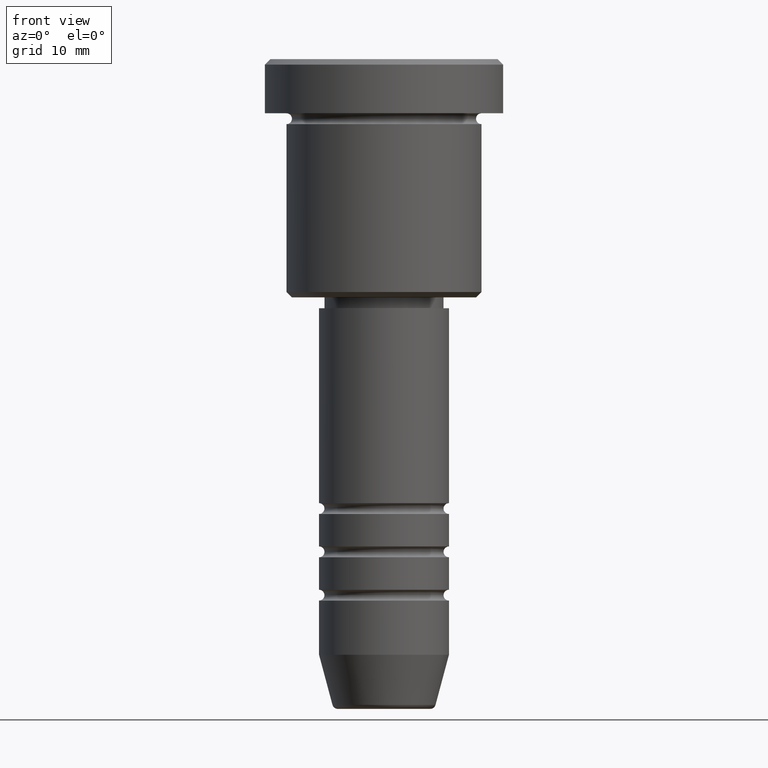
[diagram: clean part render]
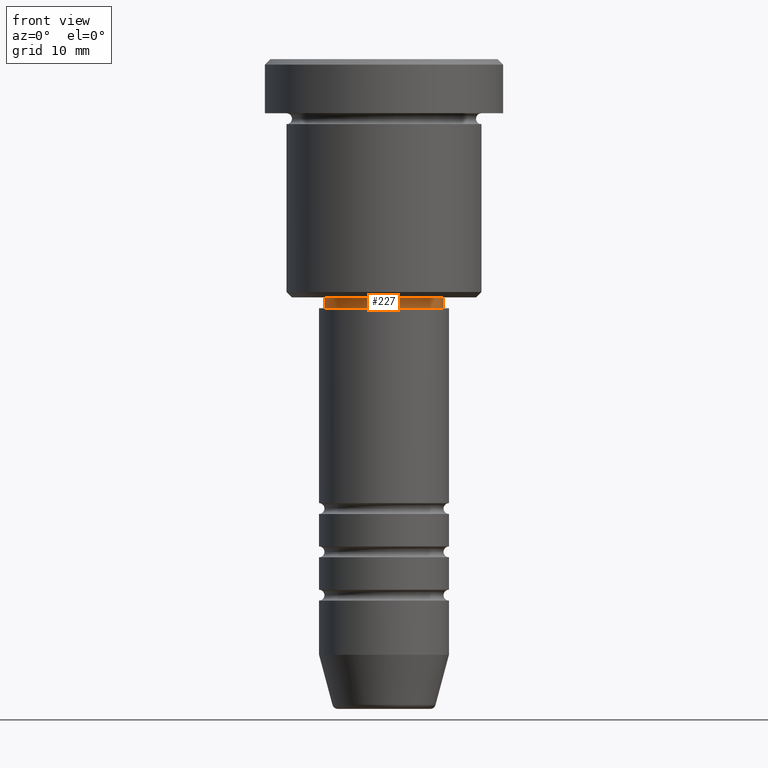
[diagram: same view with one face highlighted and labeled with its STEP entity id]
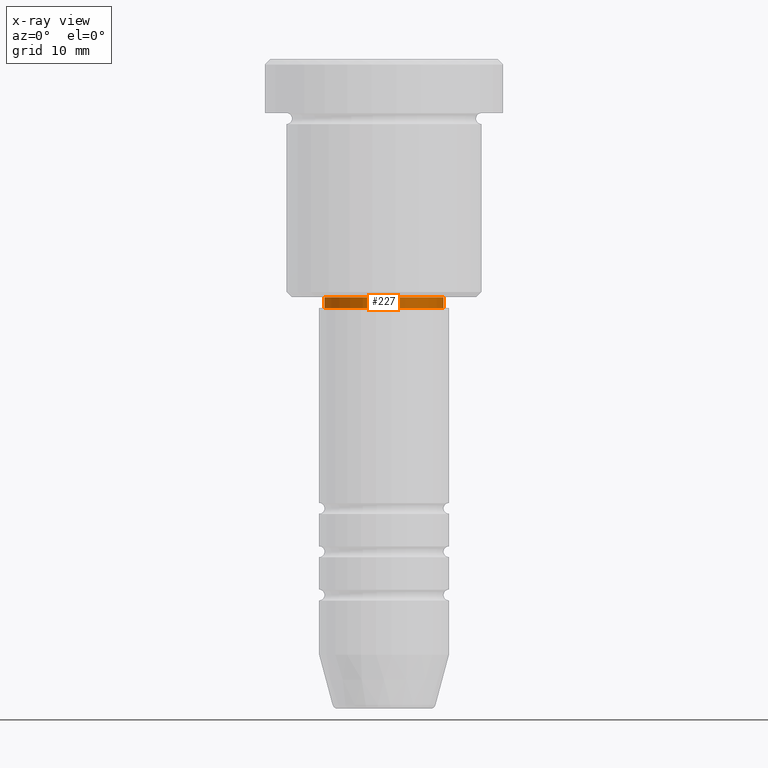
[diagram: x-ray of the same camera — body ghosted, the highlighted face saturated]
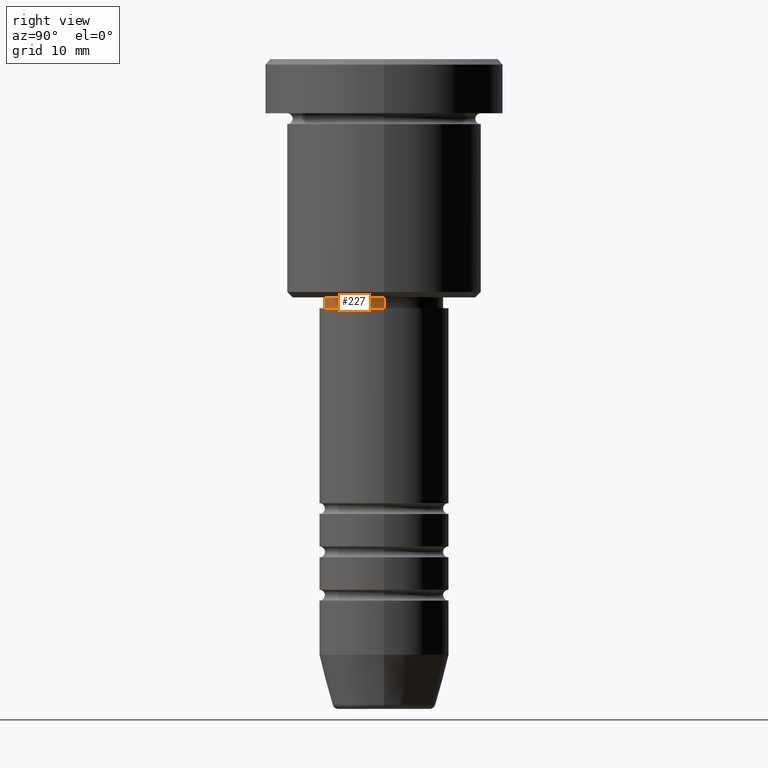
[diagram: same view with one face highlighted and labeled with its STEP entity id]
A machine part, front view. The second image highlights one B-rep face of the part: STEP entity #227.
The next image is the same camera in x-ray: the body ghosted, the highlighted face saturated — about 0% of this face is hidden behind the body in this view.
A second angle (right view) of the same face is appended — the face is thin or edge-on in the first view.
In plain terms, the highlighted cylindrical surface (partial cylindrical patch) has radius 5.5 mm, axis along (-0, -0, 1).
Its self-contained STEP definition (entity closure, byte-faithful):
#10 = AXIS2_PLACEMENT_3D ( 'NONE', #741, #276, #460 ) ;
#20 = ORIENTED_EDGE ( 'NONE', *, *, #918, .T. ) ;
#42 = DIRECTION ( 'NONE',  ( 1.000000000000000000, 0.000000000000000000, 0.000000000000000000 ) ) ;
#98 = CARTESIAN_POINT ( 'NONE',  ( 5.499999999999995559, 0.000000000000000000, 0.000000000000000000 ) ) ;
#104 = DIRECTION ( 'NONE',  ( -0.000000000000000000, -0.000000000000000000, 1.000000000000000000 ) ) ;
#113 = LINE ( 'NONE', #98, #964 ) ;
#227 = ADVANCED_FACE ( 'NONE', ( #923 ), #459, .T. ) ;
#272 = ORIENTED_EDGE ( 'NONE', *, *, #1090, .F. ) ;
#276 = DIRECTION ( 'NONE',  ( -0.000000000000000000, -0.000000000000000000, 1.000000000000000000 ) ) ;
#279 = CIRCLE ( 'NONE', #10, 5.499999999999995559 ) ;
#280 = CIRCLE ( 'NONE', #965, 5.499999999999995559 ) ;
#281 = DIRECTION ( 'NONE',  ( 1.000000000000000000, 0.000000000000000000, 0.000000000000000000 ) ) ;
#297 = EDGE_CURVE ( 'NONE', #565, #401, #561, .T. ) ;
#363 = CARTESIAN_POINT ( 'NONE',  ( -5.499999999999995559, 6.735557395310437093E-16, 0.000000000000000000 ) ) ;
#367 = DIRECTION ( 'NONE',  ( -0.000000000000000000, -0.000000000000000000, 1.000000000000000000 ) ) ;
#376 = CARTESIAN_POINT ( 'NONE',  ( 0.000000000000000000, 0.000000000000000000, 0.000000000000000000 ) ) ;
#401 = VERTEX_POINT ( 'NONE', #566 ) ;
#459 = CYLINDRICAL_SURFACE ( 'NONE', #914, 5.499999999999995559 ) ;
#460 = DIRECTION ( 'NONE',  ( 1.000000000000000000, 0.000000000000000000, 0.000000000000000000 ) ) ;
#494 = CARTESIAN_POINT ( 'NONE',  ( 0.000000000000000000, 0.000000000000000000, -22.00000000000000000 ) ) ;
#561 = LINE ( 'NONE', #363, #567 ) ;
#565 = VERTEX_POINT ( 'NONE', #1059 ) ;
#566 = CARTESIAN_POINT ( 'NONE',  ( -5.499999999999995559, 6.735557395310437093E-16, -22.00000000000000000 ) ) ;
#567 = VECTOR ( 'NONE', #367, 1000.000000000000000 ) ;
#638 = DIRECTION ( 'NONE',  ( -0.000000000000000000, -0.000000000000000000, 1.000000000000000000 ) ) ;
#642 = VERTEX_POINT ( 'NONE', #782 ) ;
#741 = CARTESIAN_POINT ( 'NONE',  ( 0.000000000000000000, 0.000000000000000000, -23.00000000000000355 ) ) ;
#766 = CARTESIAN_POINT ( 'NONE',  ( 5.499999999999995559, 0.000000000000000000, -23.00000000000000355 ) ) ;
#782 = CARTESIAN_POINT ( 'NONE',  ( 5.499999999999995559, 0.000000000000000000, -22.00000000000000000 ) ) ;
#815 = EDGE_LOOP ( 'NONE', ( #860, #824, #20, #272 ) ) ;
#824 = ORIENTED_EDGE ( 'NONE', *, *, #895, .T. ) ;
#859 = DIRECTION ( 'NONE',  ( -0.000000000000000000, -0.000000000000000000, 1.000000000000000000 ) ) ;
#860 = ORIENTED_EDGE ( 'NONE', *, *, #297, .F. ) ;
#895 = EDGE_CURVE ( 'NONE', #565, #1102, #279, .T. ) ;
#914 = AXIS2_PLACEMENT_3D ( 'NONE', #376, #638, #281 ) ;
#918 = EDGE_CURVE ( 'NONE', #1102, #642, #113, .T. ) ;
#923 = FACE_OUTER_BOUND ( 'NONE', #815, .T. ) ;
#964 = VECTOR ( 'NONE', #104, 1000.000000000000000 ) ;
#965 = AXIS2_PLACEMENT_3D ( 'NONE', #494, #859, #42 ) ;
#1059 = CARTESIAN_POINT ( 'NONE',  ( -5.499999999999995559, 6.735557395310437093E-16, -23.00000000000000355 ) ) ;
#1090 = EDGE_CURVE ( 'NONE', #401, #642, #280, .T. ) ;
#1102 = VERTEX_POINT ( 'NONE', #766 ) ;